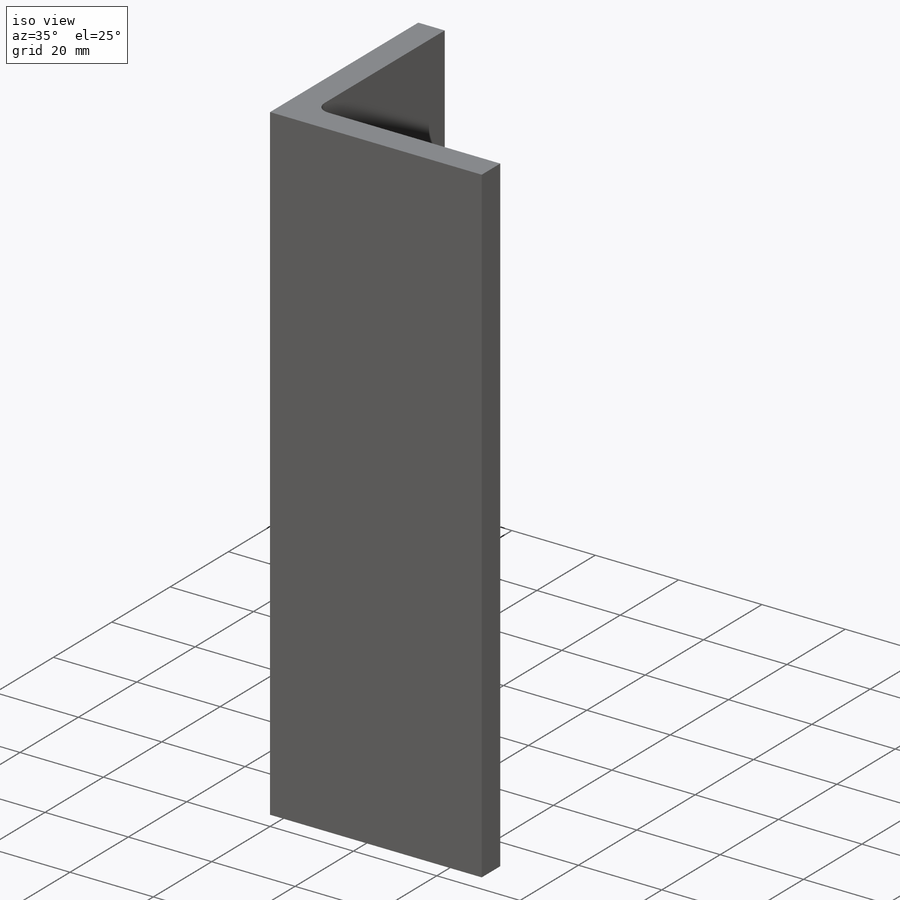
[diagram: iso view]
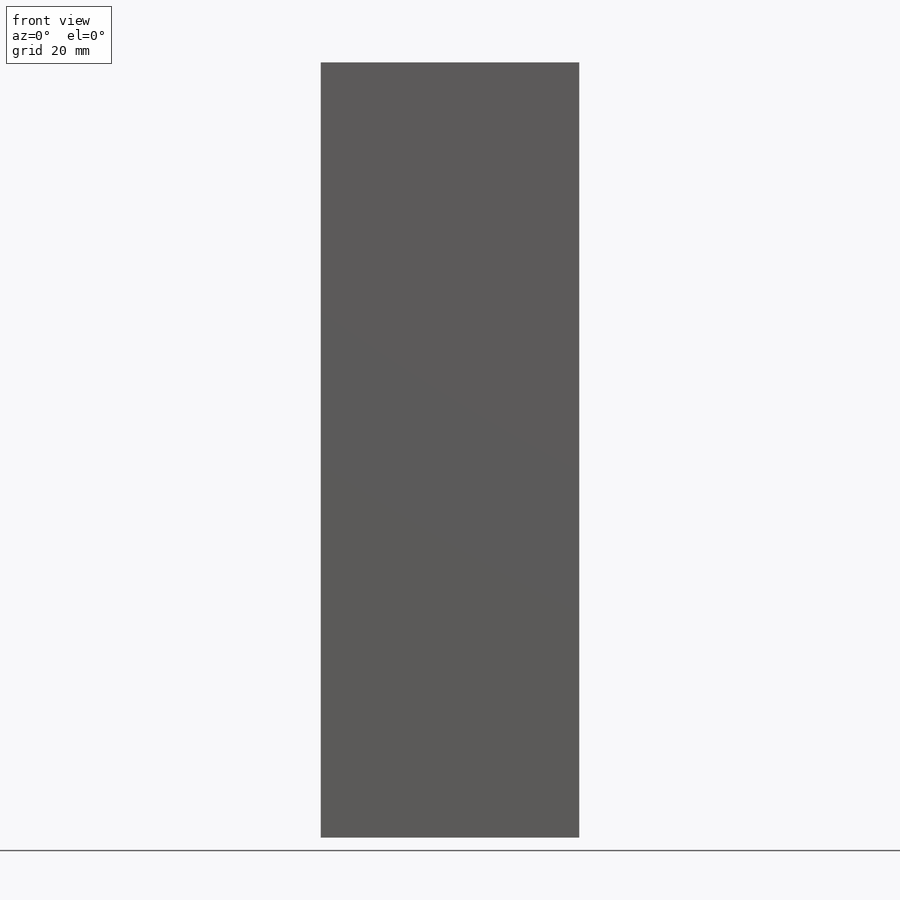
[diagram: front view]
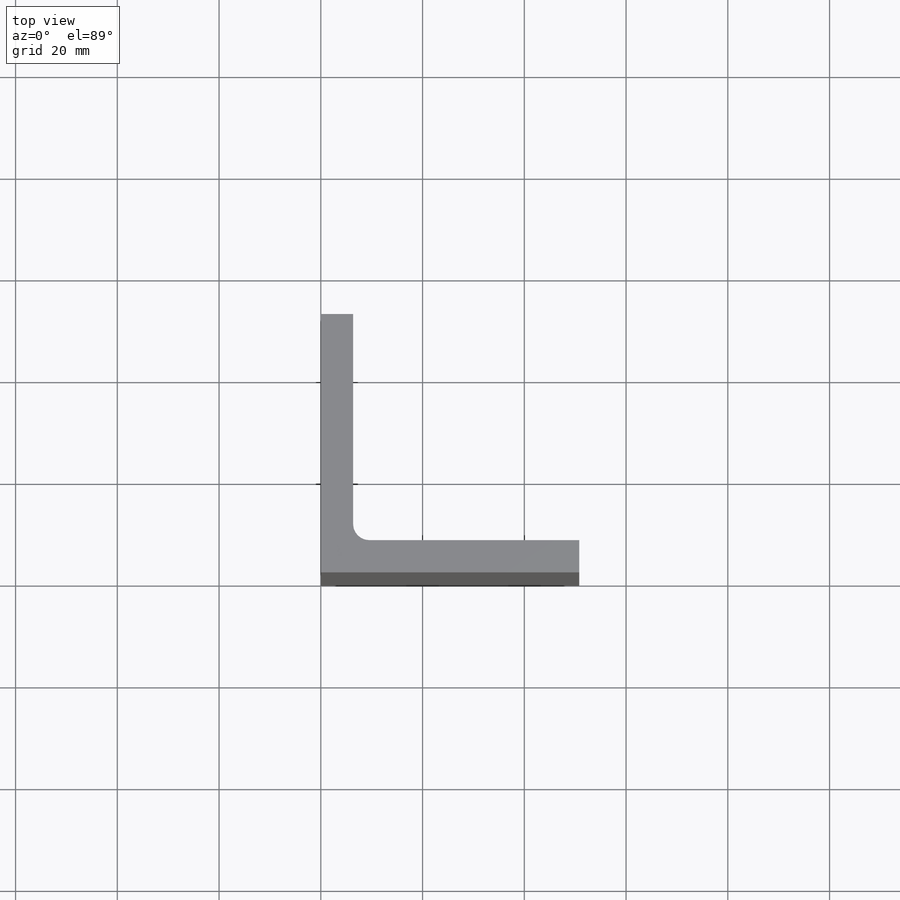
[diagram: top view]
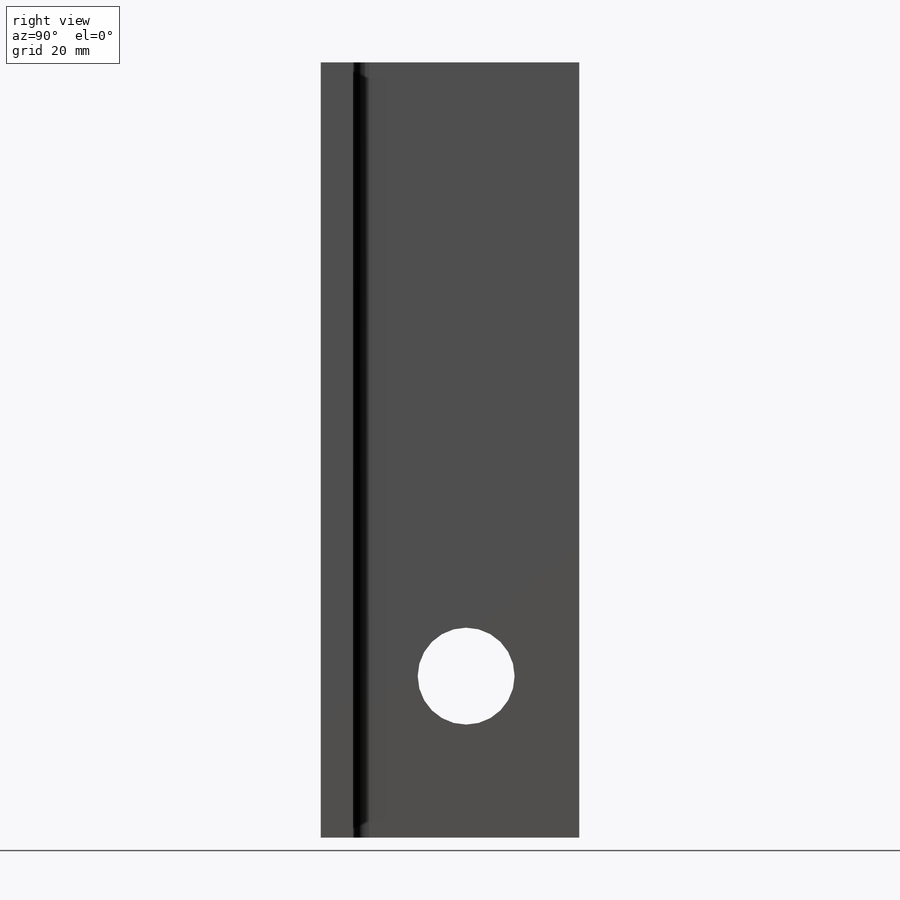
[diagram: right view]
SOLIDWORKS PART (.sldprt)
format: sldprt  version: not decoded by parser v0  size: 245,248 bytes
history: native  units: mm
features: sketch x3, material x1, extrude x1, fillet x1, hole x1 (+11 scaffold rows collapsed)
feature tree (18):
  scaffold x11  (default folders/planes/origin — collapsed)
  material  "Material <not specified>"
  sketch  "Sketch1"  dims[D1=6.35mm D2=50.8mm D3=50.8mm]
  extrude  "Boss-Extrude1"  Depth=152.4mm
  fillet  "Fillet1"  Radius=3.175mm
  hole  "3/4 (0.75) Diameter Hole1"  Diameter=19.05mm Depth=6.35mm
  sketch  "Sketch3"  dims[D1=120.65mm D2=25.4mm]
  sketch  "Sketch4"  dims[hole-wizard template sketch: 60 standard entries collapsed; hole parameters kept: c18.Thru Hole Depth=6.35mm]
decode coverage: 6 of 6 modeling features carry decoded parameters
note: ~ marks probable driven/reference dimensions
note: suppression state not decoded; provenance and decode notes live in map.json
